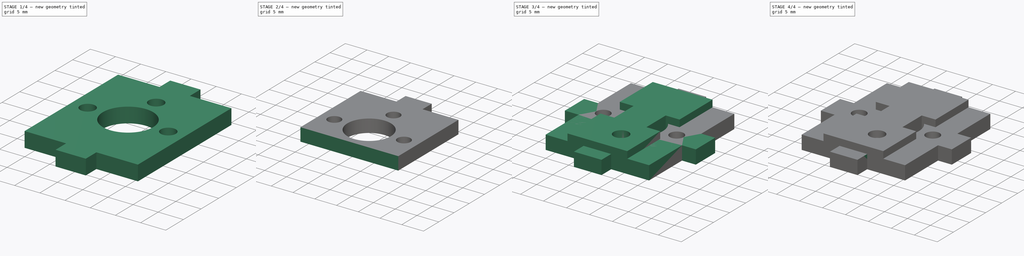
[diagram: build sequence overview — one tinted view per stage of 4, left to right]
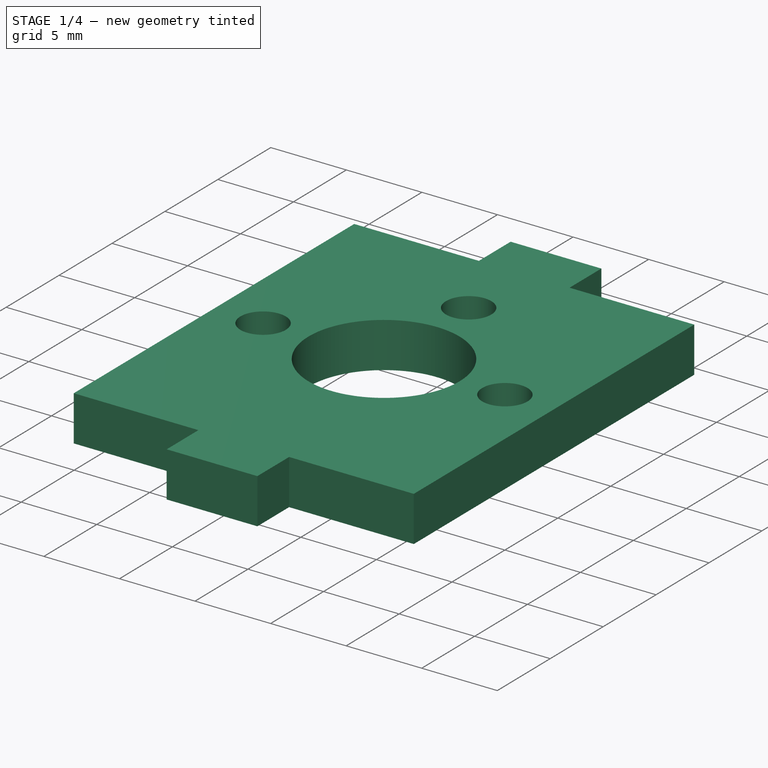
[diagram: stage 1 of 4 — iso view after this stage's code; geometry added in this stage tinted green]
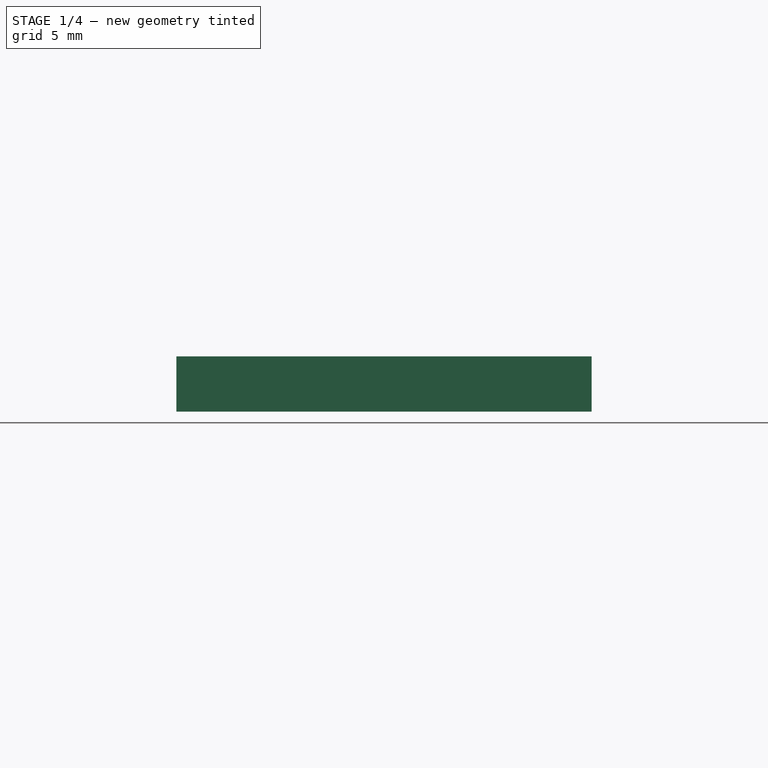
[diagram: stage 1 of 4 — front view after this stage's code; geometry added in this stage tinted green]
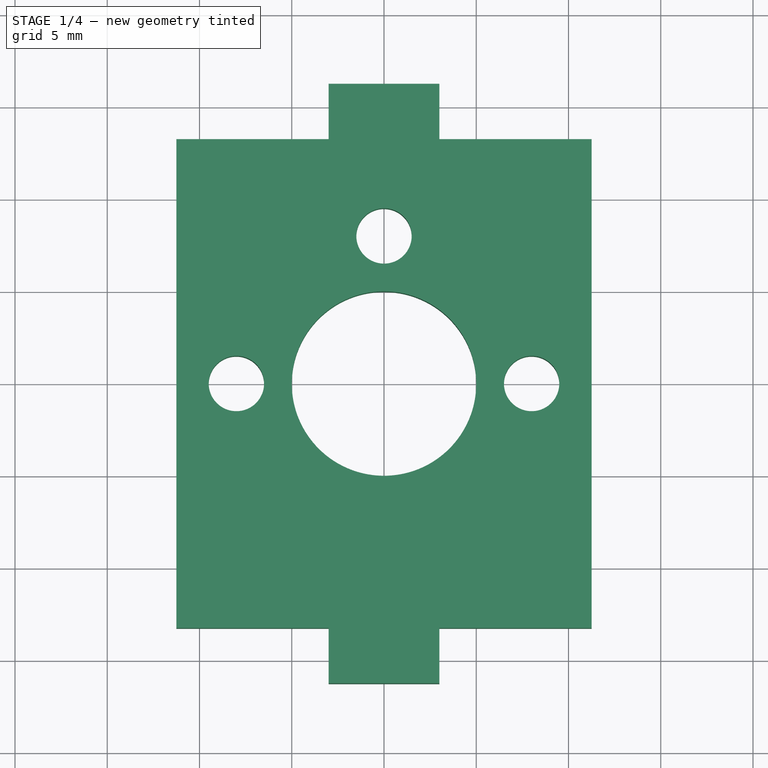
[diagram: stage 1 of 4 — top view after this stage's code; geometry added in this stage tinted green]
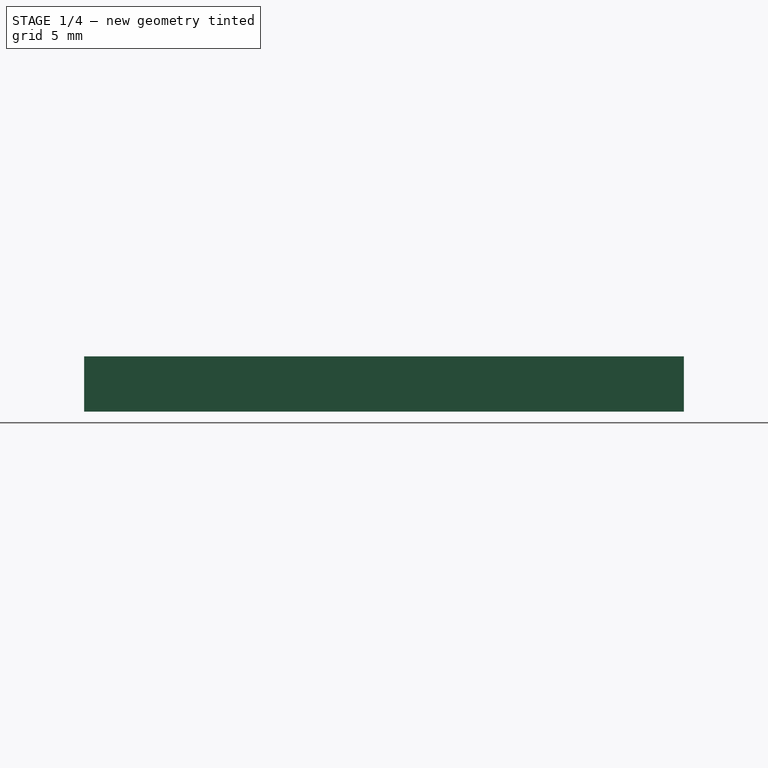
[diagram: stage 1 of 4 — right view after this stage's code; geometry added in this stage tinted green]
FCSTD DOCUMENT  (FreeCAD 0.18.1R)
Label: carriage
License: All rights reserved
LicenseURL: http://en.wikipedia.org/wiki/All_rights_reserved
objects: Sketcher::SketchObject×7, PartDesign::Pad×4, PartDesign::Body×4, PartDesign::Pocket×3, PartDesign::FeatureBase×2, TechDraw::DrawViewPart×2, TechDraw::DrawSVGTemplate×1, Spreadsheet::Sheet×1, TechDraw::DrawPage×1
note: 27 computed .brp shape members not serialized (recipe doc carries the construction recipe); baked Part::Feature solids carry a one-line shape summary decoded from their .brp

FEATURE [Sketcher::SketchObject] Sketch
  MapMode = 5
  Support = -> [XY_Plane]
  expr: Constraints[12] = values.height
  expr: Constraints[9] = values.width
  sketch-geometry (8):
    g0: Circle CenterX=0 CenterY=0 CenterZ=0 NormalX=0 NormalY=0 NormalZ=1 AngleXU=0 Radius=5
    g1: LineSegment StartX=-11.25 StartY=13.25 StartZ=0 EndX=11.25 EndY=13.25 EndZ=0
    g2: LineSegment StartX=11.25 StartY=13.25 StartZ=0 EndX=11.25 EndY=-13.25 EndZ=0
    g3: LineSegment StartX=11.25 StartY=-13.25 StartZ=0 EndX=-11.25 EndY=-13.25 EndZ=0
    g4: LineSegment StartX=-11.25 StartY=-13.25 StartZ=0 EndX=-11.25 EndY=13.25 EndZ=0
    g5: Circle CenterX=0 CenterY=8 CenterZ=0 NormalX=0 NormalY=0 NormalZ=1 AngleXU=0 Radius=1.5
    g6: Circle CenterX=8 CenterY=0 CenterZ=0 NormalX=0 NormalY=0 NormalZ=1 AngleXU=0 Radius=1.5
    g7: Circle CenterX=-8 CenterY=0 CenterZ=0 NormalX=0 NormalY=0 NormalZ=1 AngleXU=0 Radius=1.5
  constraints (21):
    c: Coincident(g0,g-1)
    c: Coincident(g1,g2)
    c: Coincident(g2,g3)
    c: Coincident(g3,g4)
    c: Coincident(g4,g1)
    c: Horizontal(g1)
    c: Horizontal(g3)
    c: Vertical(g2)
    c: Vertical(g4)
    c: DistanceX(g1,g1) = 22.5
    c: Diameter(g0) = 10
    c: Symmetric(g3,g1,g0)
    c: DistanceY(g4,g4) = 26.5
    c: Equal(g5,g6)
    c: Equal(g6,g7)
    c: Diameter(g5) = 3
    c: PointOnObject(g5,g-2)
    c: PointOnObject(g7,g-1)
    c: Symmetric(g7,g6,g-2)
    c: DistanceY(g0,g5) = 8
    c: DistanceX(g7,g6) = 16
FEATURE [PartDesign::Pad] Pad
  Length = 3
  Length2 = 100
  Midplane = true
  Profile = -> Sketch
  Refine = true
  Type = 0
FEATURE [PartDesign::Body] Body003  label="SidePanel"
  Group = -> [Sketch006,Pad004,Sketch016,Pocket005]
  Origin = -> Origin003
  Placement = pos=(0,-40,0) rot=(0,0,1;0rad)
  Tip = -> Pocket005
FEATURE [TechDraw::DrawViewPart] View  label="SidePiece"
  CoarseView = false
  Direction = (0,0,1)
  Focus = 100
  HardHidden = false
  IsoCount = 0
  IsoHidden = false
  IsoVisible = false
  LockPosition = false
  Perspective = false
  Rotation = 0
  ScaleType = 0
  SeamHidden = false
  SeamVisible = false
  SmoothHidden = false
  SmoothVisible = false
  Source = -> [Body003]
  X = 41.0122
  Y = 263.195
FEATURE [Sketcher::SketchObject] Sketch017
  ExternalGeometry = -> [Pad]
  MapMode = 5
  Placement = pos=(0,0,1.5) rot=(0,0,1;0rad)
  Support = -> [Pad]
  sketch-geometry (8):
    g0: LineSegment StartX=-3 StartY=16.25 StartZ=0 EndX=3 EndY=16.25 EndZ=0
    g1: LineSegment StartX=3 StartY=16.25 StartZ=0 EndX=3 EndY=13.25 EndZ=0
    g2: LineSegment StartX=3 StartY=13.25 StartZ=0 EndX=-3 EndY=13.25 EndZ=0
    g3: LineSegment StartX=-3 StartY=13.25 StartZ=0 EndX=-3 EndY=16.25 EndZ=0
    g4: LineSegment StartX=-3 StartY=-16.25 StartZ=0 EndX=3 EndY=-16.25 EndZ=0
    g5: LineSegment StartX=3 StartY=-16.25 StartZ=0 EndX=3 EndY=-13.25 EndZ=0
    g6: LineSegment StartX=3 StartY=-13.25 StartZ=0 EndX=-3 EndY=-13.25 EndZ=0
    g7: LineSegment StartX=-3 StartY=-13.25 StartZ=0 EndX=-3 EndY=-16.25 EndZ=0
  constraints (22):
    c: Coincident(g0,g1)
    c: Coincident(g1,g2)
    c: Coincident(g2,g3)
    c: Coincident(g3,g0)
    c: Horizontal(g2)
    c: Vertical(g1)
    c: Vertical(g3)
    c: Symmetric(g0,g0,g-2)
    c: DistanceX(g0,g0) = 6
    c: DistanceY(g3,g3) = 3
    c: PointOnObject(g2,g-4)
    c: Coincident(g4,g5)
    c: Coincident(g5,g6)
    c: Coincident(g6,g7)
    c: Coincident(g7,g4)
    c: Horizontal(g6)
    c: Vertical(g5)
    c: Vertical(g7)
    c: DistanceY(g7,g7) = 3
    c: DistanceX(g4,g4) = 6
    c: PointOnObject(g6,g-5)
    c: Symmetric(g4,g4,g-2)
FEATURE [PartDesign::Pad] Pad005
  BaseFeature = -> Pad
  Length = 3
  Length2 = 100
  Profile = -> Sketch017
  Refine = true
  Reversed = true
  Type = 0
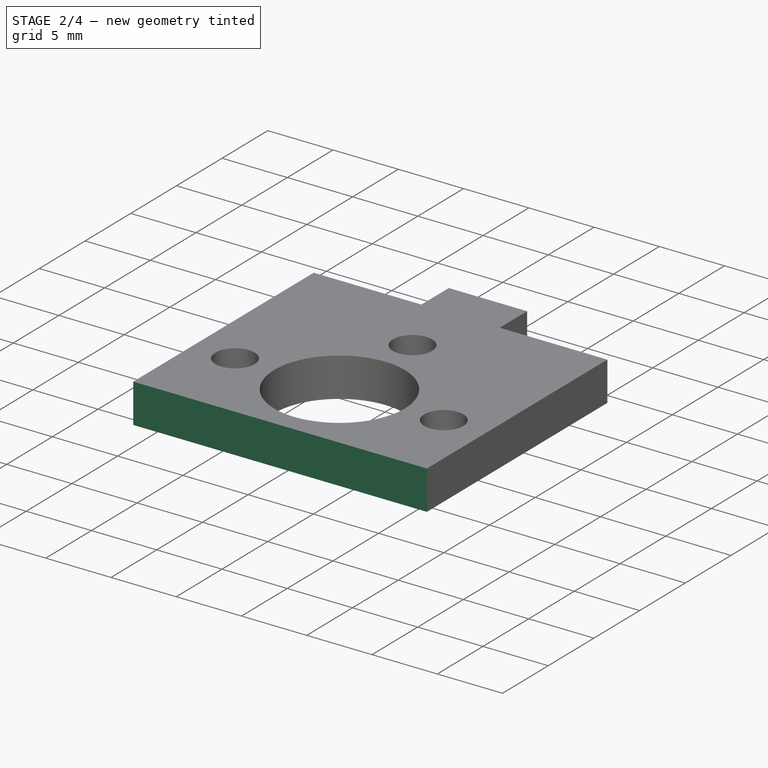
[diagram: stage 2 of 4 — iso view after this stage's code; geometry added in this stage tinted green]
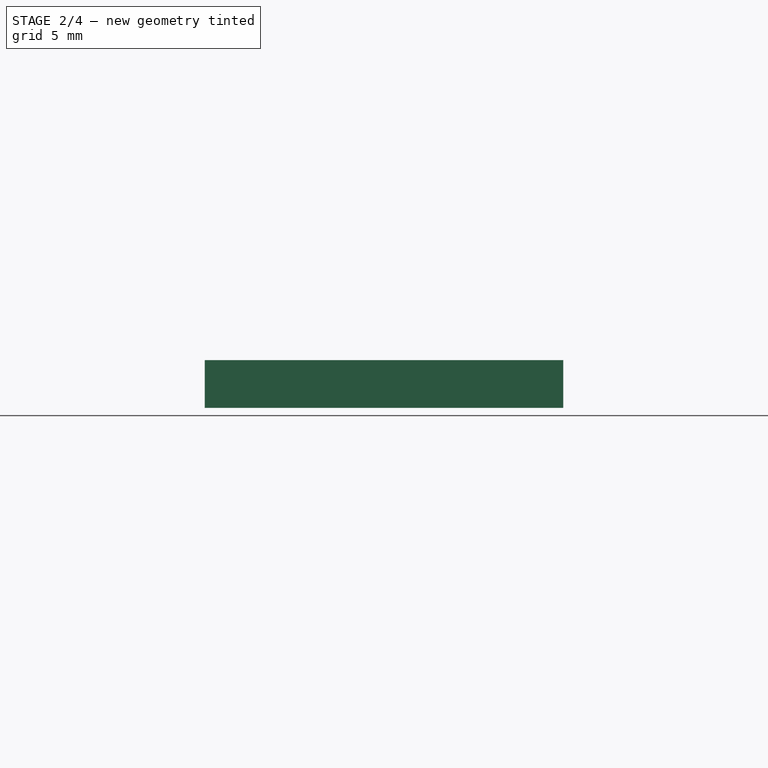
[diagram: stage 2 of 4 — front view after this stage's code; geometry added in this stage tinted green]
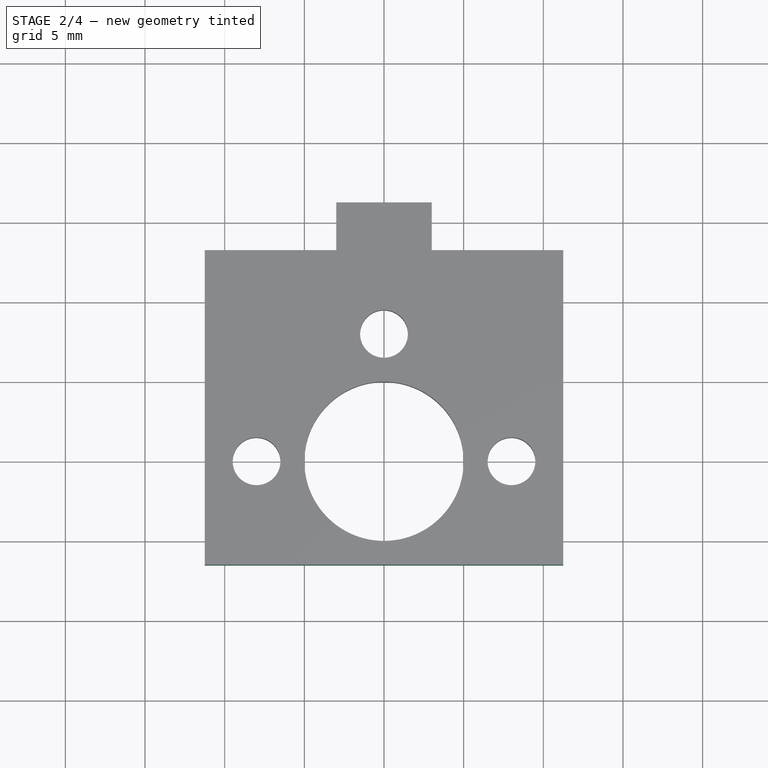
[diagram: stage 2 of 4 — top view after this stage's code; geometry added in this stage tinted green]
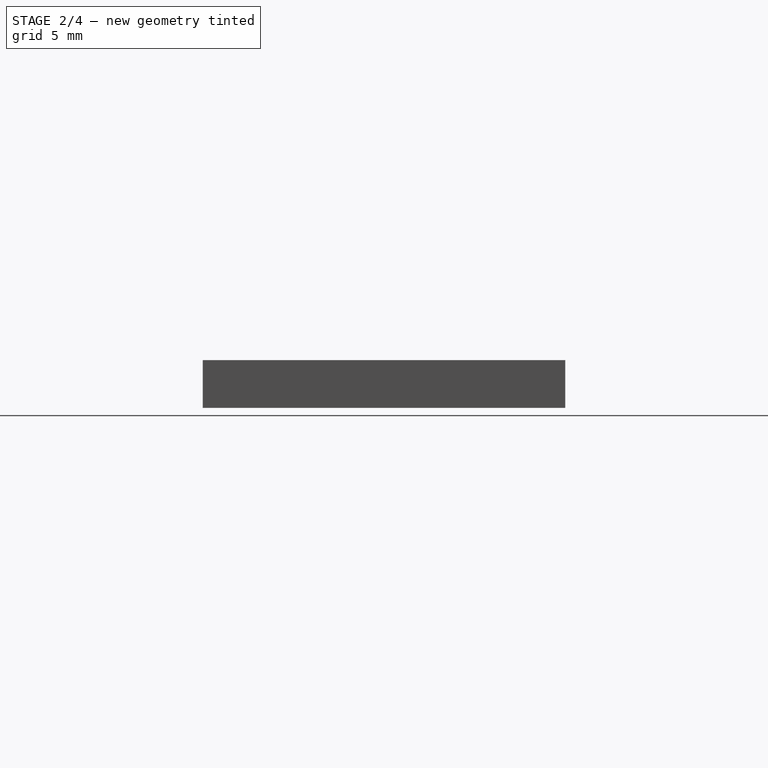
[diagram: stage 2 of 4 — right view after this stage's code; geometry added in this stage tinted green]
FEATURE [PartDesign::FeatureBase] Clone
  BaseFeature = -> Pad005
FEATURE [PartDesign::Body] Body  label="Base"
  Group = -> [Sketch,Pad,Sketch017,Pad005,Sketch018,Pad006]
  Origin = -> Origin
  Tip = -> Pad006
FEATURE [TechDraw::DrawViewPart] View001  label="EndPiece"
  CoarseView = false
  Direction = (0,0,1)
  Focus = 100
  HardHidden = false
  IsoCount = 0
  IsoHidden = false
  IsoVisible = false
  LockPosition = false
  Perspective = false
  Rotation = 0
  ScaleType = 0
  SeamHidden = false
  SeamVisible = false
  SmoothHidden = false
  SmoothVisible = false
  Source = -> [Body]
  X = 124.921
  Y = 260.78
FEATURE [TechDraw::DrawPage] Page
  KeepUpdated = true
  ProjectionType = 0
  Template = -> Template
  Views = -> [View,View001]
FEATURE [Sketcher::SketchObject] Sketch019
  ExternalGeometry = -> [Clone]
  MapMode = 5
  Placement = pos=(0,0,1.5) rot=(0,0,1;0rad)
  Support = -> [Clone]
  expr: Constraints[11] = 8 - 1.5
  sketch-geometry (4):
    g0: LineSegment StartX=11.25 StartY=-16.25 StartZ=0 EndX=-11.25 EndY=-16.25 EndZ=0
    g1: LineSegment StartX=-11.25 StartY=-16.25 StartZ=0 EndX=-11.25 EndY=-6.5 EndZ=0
    g2: LineSegment StartX=-11.25 StartY=-6.5 StartZ=0 EndX=11.25 EndY=-6.5 EndZ=0
    g3: LineSegment StartX=11.25 StartY=-6.5 StartZ=0 EndX=11.25 EndY=-16.25 EndZ=0
  constraints (12):
    c: Coincident(g0,g1)
    c: Coincident(g1,g2)
    c: Coincident(g2,g3)
    c: Coincident(g3,g0)
    c: Horizontal(g0)
    c: Horizontal(g2)
    c: Vertical(g1)
    c: Vertical(g3)
    c: PointOnObject(g1,g-3)
    c: PointOnObject(g2,g-4)
    c: Horizontal(g0,g-5)
    c: DistanceY(g2,g-1) = 6.5
FEATURE [PartDesign::Pocket] Pocket
  BaseFeature = -> Clone
  Length = 5
  Length2 = 100
  Profile = -> Sketch019
  Refine = true
  Type = 1
FEATURE [PartDesign::Body] Body006  label="Gap"
  BaseFeature = -> Pad005
  Group = -> [Clone,Sketch019,Pocket]
  Origin = -> Origin006
  Placement = pos=(32,0,0) rot=(0,0,1;0rad)
  Tip = -> Pocket
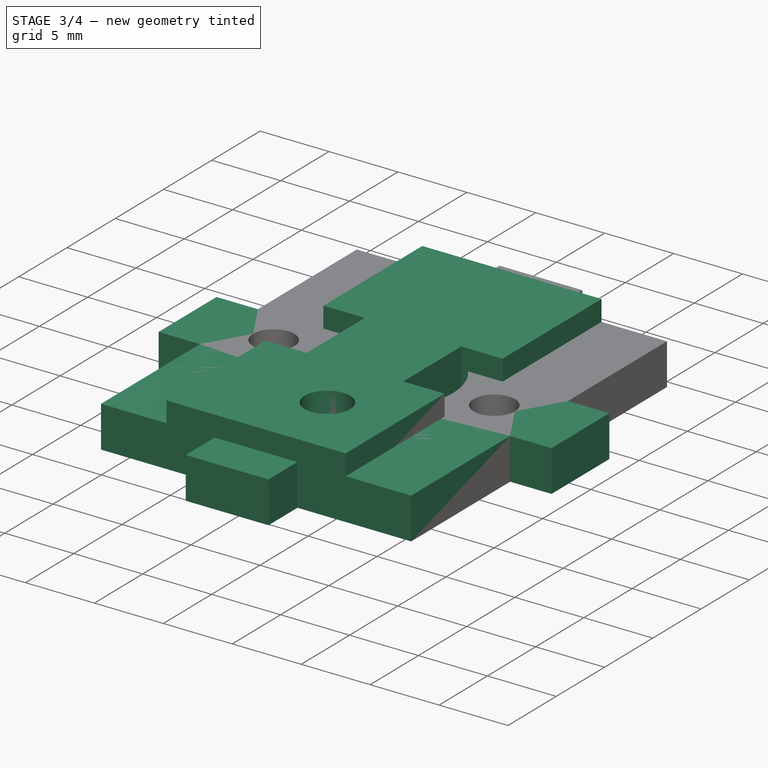
[diagram: stage 3 of 4 — iso view after this stage's code; geometry added in this stage tinted green]
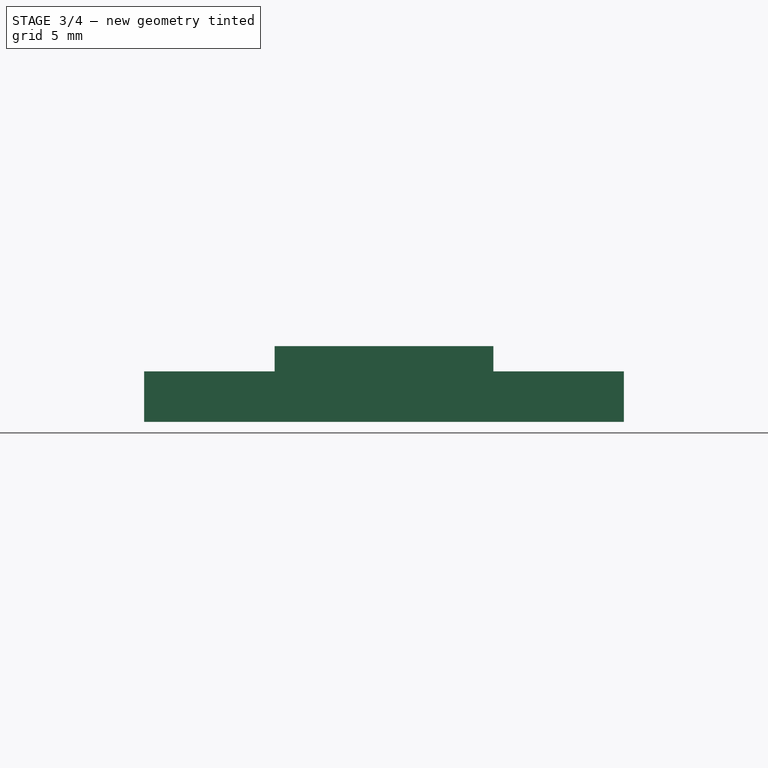
[diagram: stage 3 of 4 — front view after this stage's code; geometry added in this stage tinted green]
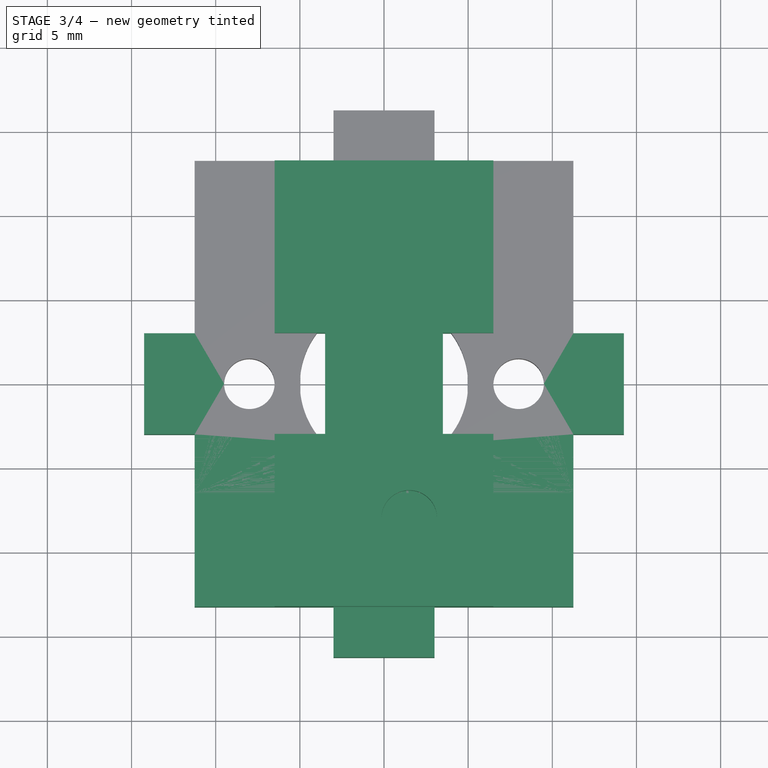
[diagram: stage 3 of 4 — top view after this stage's code; geometry added in this stage tinted green]
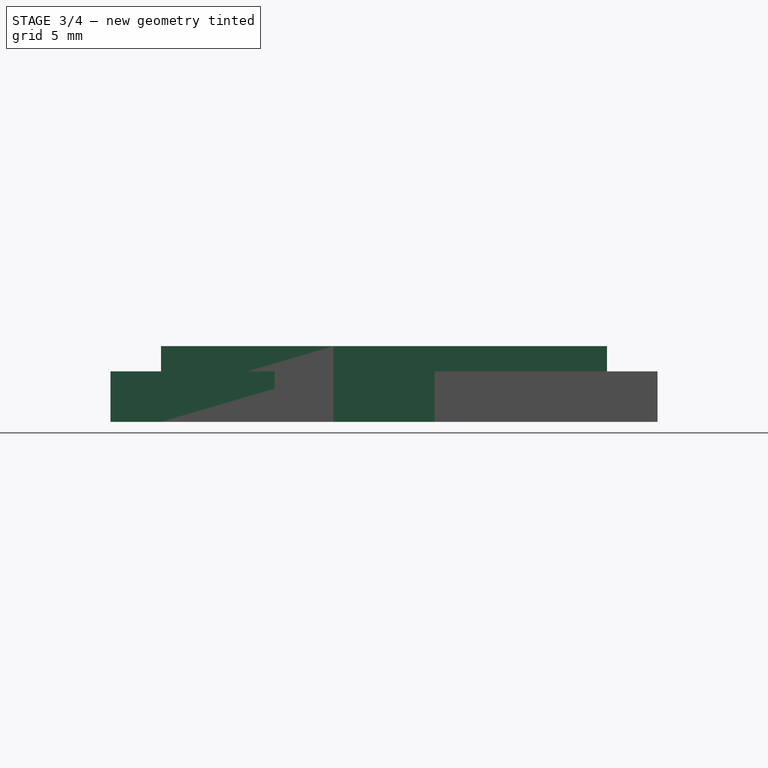
[diagram: stage 3 of 4 — right view after this stage's code; geometry added in this stage tinted green]
FEATURE [Sketcher::SketchObject] Sketch006
  MapMode = 5
  Support = -> [XY_Plane003]
  expr: Constraints[26] = values.height
  sketch-geometry (12):
    g0: LineSegment StartX=-6.5 StartY=13.25 StartZ=0 EndX=6.5 EndY=13.25 EndZ=0
    g1: LineSegment StartX=6.5 StartY=13.25 StartZ=0 EndX=6.5 EndY=3 EndZ=0
    g2: LineSegment StartX=6.5 StartY=3 StartZ=0 EndX=3.5 EndY=3 EndZ=0
    g3: LineSegment StartX=3.5 StartY=3 StartZ=0 EndX=3.5 EndY=-3 EndZ=0
    g4: LineSegment StartX=3.5 StartY=-3 StartZ=0 EndX=6.5 EndY=-3 EndZ=0
    g5: LineSegment StartX=6.5 StartY=-3 StartZ=0 EndX=6.5 EndY=-13.25 EndZ=0
    g6: LineSegment StartX=6.5 StartY=-13.25 StartZ=0 EndX=-6.5 EndY=-13.25 EndZ=0
    g7: LineSegment StartX=-6.5 StartY=-13.25 StartZ=0 EndX=-6.5 EndY=-3 EndZ=0
    g8: LineSegment StartX=-6.5 StartY=-3 StartZ=0 EndX=-3.5 EndY=-3 EndZ=0
    g9: LineSegment StartX=-3.5 StartY=-3 StartZ=0 EndX=-3.5 EndY=3 EndZ=0
    g10: LineSegment StartX=-3.5 StartY=3 StartZ=0 EndX=-6.5 EndY=3 EndZ=0
    g11: LineSegment StartX=-6.5 StartY=3 StartZ=0 EndX=-6.5 EndY=13.25 EndZ=0
  constraints (32):
    c: Horizontal(g0)
    c: Coincident(g0,g1)
    c: Vertical(g1)
    c: Coincident(g1,g2)
    c: Horizontal(g2)
    c: Coincident(g2,g3)
    c: Vertical(g3)
    c: Coincident(g3,g4)
    c: Horizontal(g4)
    c: Coincident(g4,g5)
    c: Vertical(g5)
    c: Coincident(g5,g6)
    c: Coincident(g6,g7)
    c: Vertical(g7)
    c: Coincident(g7,g8)
    c: Coincident(g8,g9)
    c: Coincident(g9,g10)
    c: Coincident(g10,g11)
    c: Coincident(g11,g0)
    c: Symmetric(g6,g0,g-1)
    c: Symmetric(g8,g2,g-1)
    c: Symmetric(g9,g3,g-1)
    c: Symmetric(g0,g5,g-1)
    c: DistanceX(g10,g10) = 3
    c: Vertical(g11)
    c: Equal(g10,g8)
    c: DistanceY(g6,g0) = 26.5
    c: DistanceY(g8,g9) = 6
    c: Horizontal(g10)
    c: Horizontal(g8)
    c: Equal(g5,g7)
    c: DistanceX(g8,g3) = 7
FEATURE [PartDesign::Pad] Pad004
  Length = 3
  Length2 = 100
  Profile = -> Sketch006
  Refine = true
  Type = 0
FEATURE [PartDesign::Body] Body005  label="Screw piece"
  Group = -> [Clone001,Sketch011,Pocket004]
  Origin = -> Origin005
  Placement = pos=(81,0,0) rot=(0,0,1;0rad)
  Tip = -> Pocket004
FEATURE [TechDraw::DrawSVGTemplate] Template
  Height = 297
  Orientation = 0
  Width = 210
FEATURE [Spreadsheet::Sheet] Spreadsheet  label="values"
  cells = A1=Length; A2=Width; B2(width)=22.5; A3=Height; B3(height)=26.5; A7=Tab Width; B7(tab_width)=6; A8=Overall Width; B8(overall_width)==B2 + 10
FEATURE [Sketcher::SketchObject] Sketch016
  MapMode = 5
  Placement = pos=(0,0,3) rot=(0,0,1;0rad)
  Support = -> [Pad004]
  sketch-geometry (1):
    g0: Circle CenterX=1.5 CenterY=-8 CenterZ=0 NormalX=0 NormalY=0 NormalZ=1 AngleXU=0 Radius=1.65
  constraints (3):
    c: Diameter(g0) = 3.3
    c: DistanceX(g-1,g0) = 1.5
    c: DistanceY(g0,g-1) = 8
FEATURE [PartDesign::Pocket] Pocket005
  BaseFeature = -> Pad004
  Length = 5
  Length2 = 100
  Profile = -> Sketch016
  Refine = true
  Type = 1
FEATURE [Sketcher::SketchObject] Sketch018
  ExternalGeometry = -> [Pad005]
  MapMode = 5
  Placement = pos=(0,0,1.5) rot=(0,0,1;0rad)
  Support = -> [Pad005]
  sketch-geometry (8):
    g0: LineSegment StartX=-14.25 StartY=3 StartZ=0 EndX=-11.25 EndY=3 EndZ=0
    g1: LineSegment StartX=-11.25 StartY=3 StartZ=0 EndX=-11.25 EndY=-3 EndZ=0
    g2: LineSegment StartX=-11.25 StartY=-3 StartZ=0 EndX=-14.25 EndY=-3 EndZ=0
    g3: LineSegment StartX=-14.25 StartY=-3 StartZ=0 EndX=-14.25 EndY=3 EndZ=0
    g4: LineSegment StartX=14.25 StartY=3 StartZ=0 EndX=11.25 EndY=3 EndZ=0
    g5: LineSegment StartX=11.25 StartY=3 StartZ=0 EndX=11.25 EndY=-3 EndZ=0
    g6: LineSegment StartX=11.25 StartY=-3 StartZ=0 EndX=14.25 EndY=-3 EndZ=0
    g7: LineSegment StartX=14.25 StartY=-3 StartZ=0 EndX=14.25 EndY=3 EndZ=0
  constraints (22):
    c: Coincident(g0,g1)
    c: Coincident(g1,g2)
    c: Coincident(g2,g3)
    c: Coincident(g3,g0)
    c: Horizontal(g0)
    c: Horizontal(g2)
    c: Vertical(g1)
    c: DistanceY(g3,g3) = 6
    c: Symmetric(g2,g0,g-1)
    c: DistanceX(g2,g2) = 3
    c: PointOnObject(g1,g-3)
    c: Coincident(g4,g5)
    c: Coincident(g5,g6)
    c: Coincident(g6,g7)
    c: Coincident(g7,g4)
    c: Horizontal(g4)
    c: Horizontal(g6)
    c: Vertical(g5)
    c: PointOnObject(g4,g-4)
    c: DistanceX(g4,g4) = 3
    c: DistanceY(g7,g7) = 6
    c: Symmetric(g6,g4,g-1)
FEATURE [PartDesign::Pad] Pad006
  BaseFeature = -> Pad005
  Length = 3
  Length2 = 100
  Profile = -> Sketch018
  Refine = true
  Reversed = true
  Type = 0
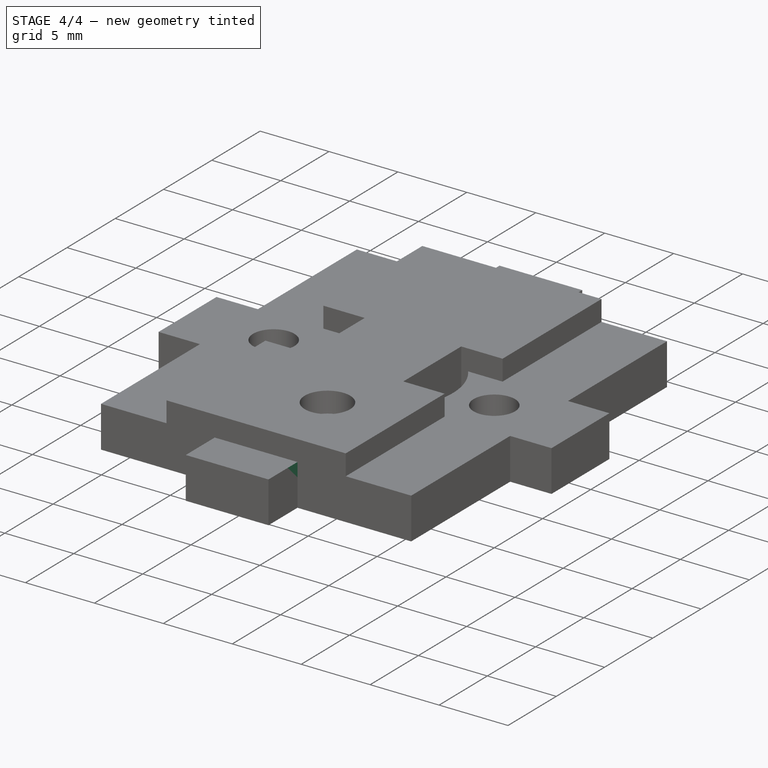
[diagram: stage 4 of 4 — iso view after this stage's code; geometry added in this stage tinted green]
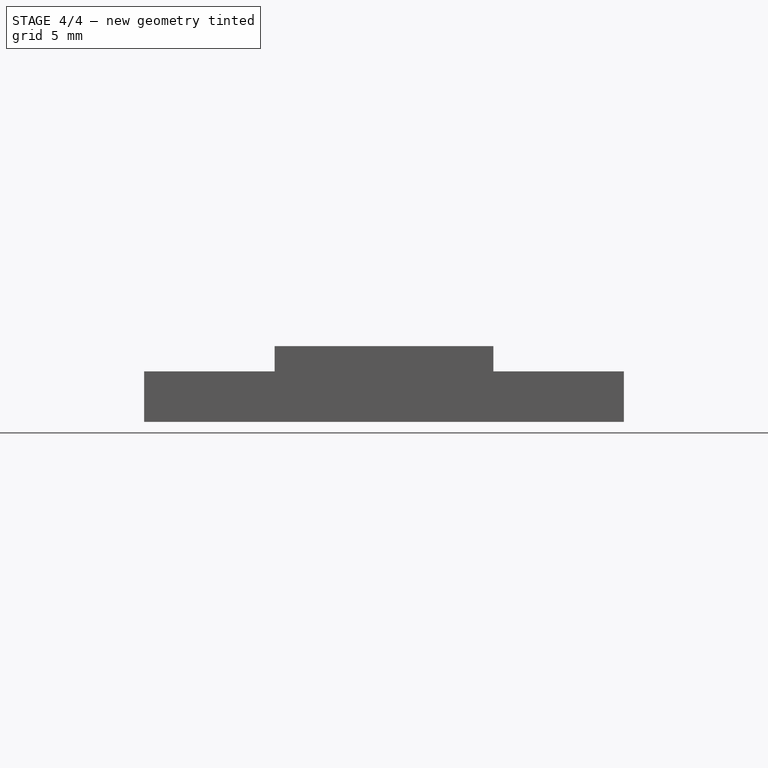
[diagram: stage 4 of 4 — front view after this stage's code; geometry added in this stage tinted green]
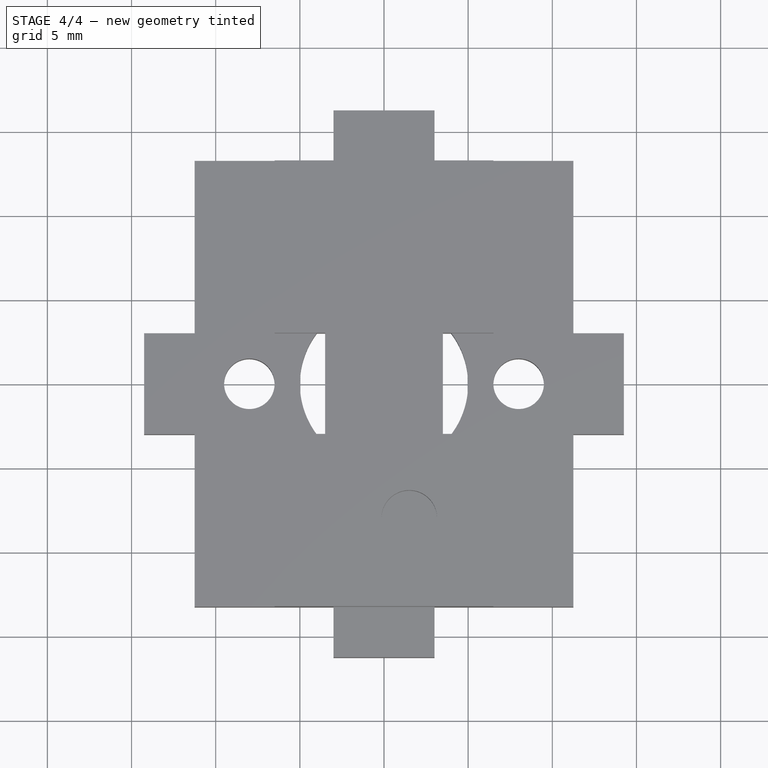
[diagram: stage 4 of 4 — top view after this stage's code; geometry added in this stage tinted green]
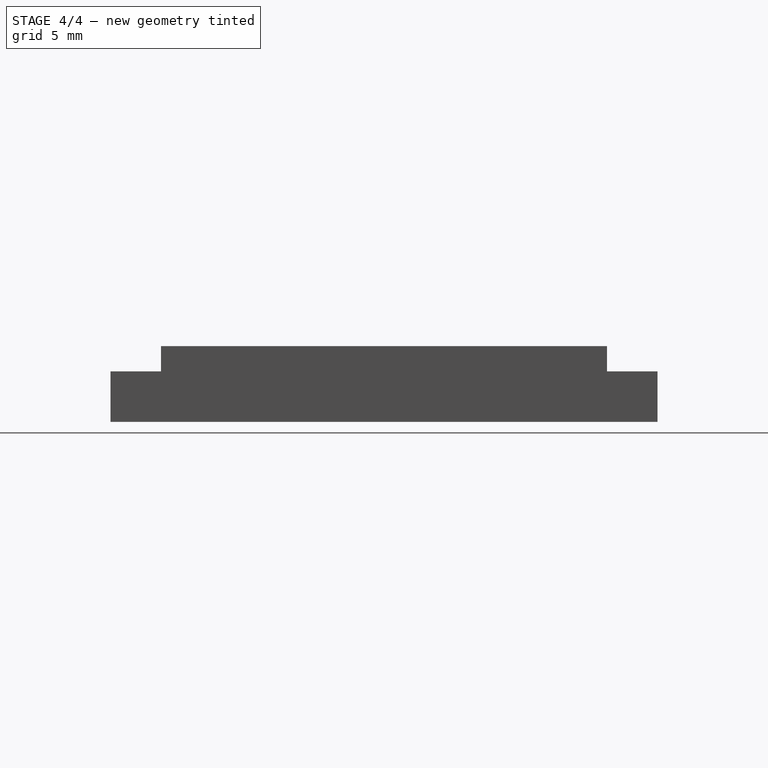
[diagram: stage 4 of 4 — right view after this stage's code; geometry added in this stage tinted green]
FEATURE [PartDesign::FeatureBase] Clone001
FEATURE [Sketcher::SketchObject] Sketch011
  ExternalGeometry = -> [Clone001]
  MapMode = 5
  Placement = pos=(-2e-16,2e-16,1.5) rot=(0,0,1;0rad)
  Support = -> [Clone001]
  sketch-geometry (4):
    g0: LineSegment StartX=-14.25 StartY=14.25 StartZ=0 EndX=14.25 EndY=14.25 EndZ=0
    g1: LineSegment StartX=14.25 StartY=14.25 StartZ=0 EndX=14.25 EndY=5 EndZ=0
    g2: LineSegment StartX=14.25 StartY=5 StartZ=0 EndX=-14.25 EndY=5 EndZ=0
    g3: LineSegment StartX=-14.25 StartY=5 StartZ=0 EndX=-14.25 EndY=14.25 EndZ=0
  constraints (12):
    c: Coincident(g0,g1)
    c: Coincident(g1,g2)
    c: Coincident(g2,g3)
    c: Coincident(g3,g0)
    c: Horizontal(g0)
    c: Horizontal(g2)
    c: Vertical(g1)
    c: Vertical(g3)
    c: Horizontal(g3,g-3)
    c: Vertical(g3,g-4)
    c: Vertical(g2,g-5)
    c: DistanceY(g-1,g2) = 5
FEATURE [PartDesign::Pocket] Pocket004
  BaseFeature = -> Clone001
  Length = 5
  Length2 = 100
  Profile = -> Sketch011
  Refine = true
  Type = 1
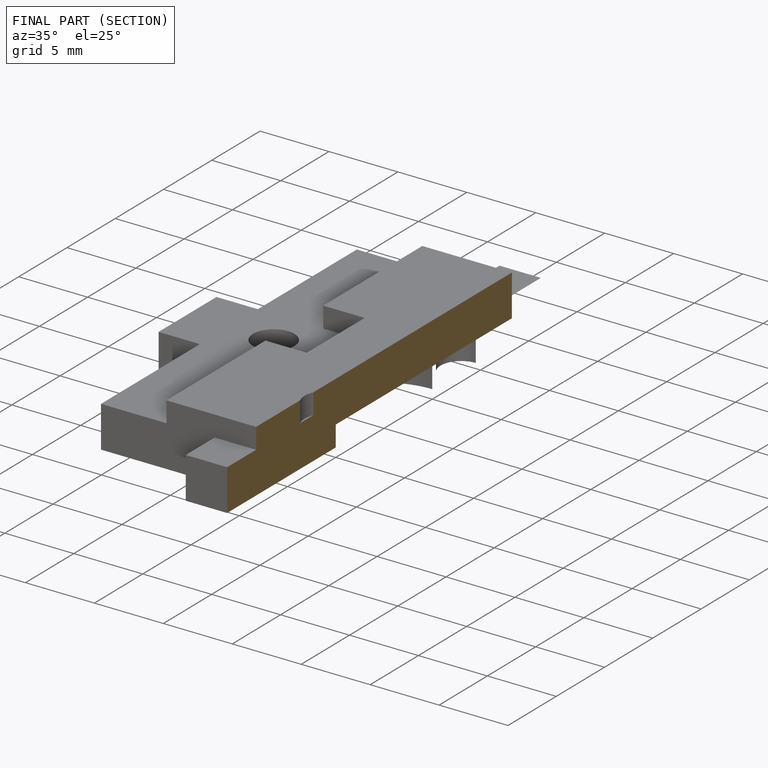
[diagram: finished part — half-section view (interior)]
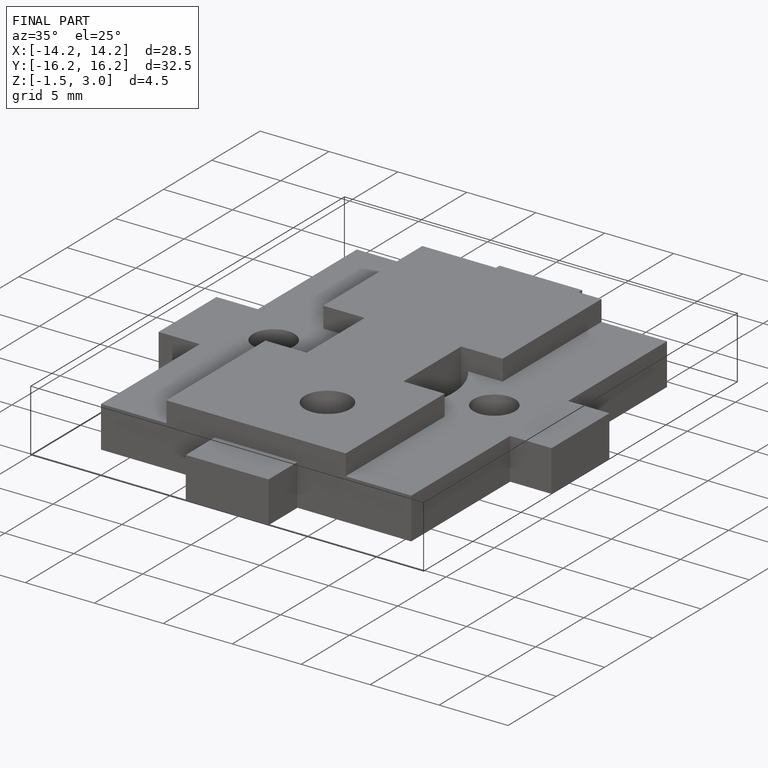
[diagram: finished part — iso view with bounding-box wireframe]
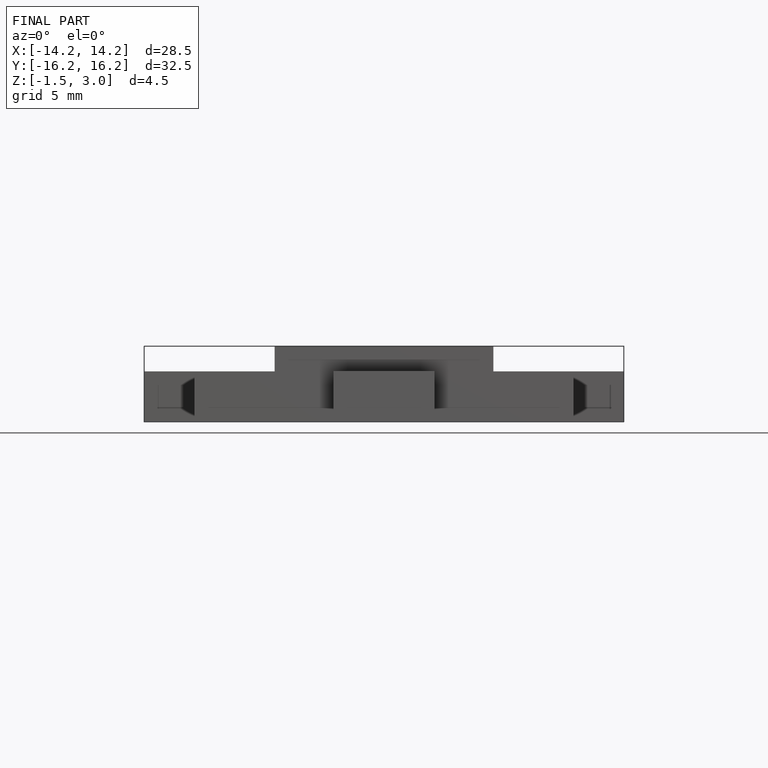
[diagram: finished part — front view with bounding-box wireframe]
